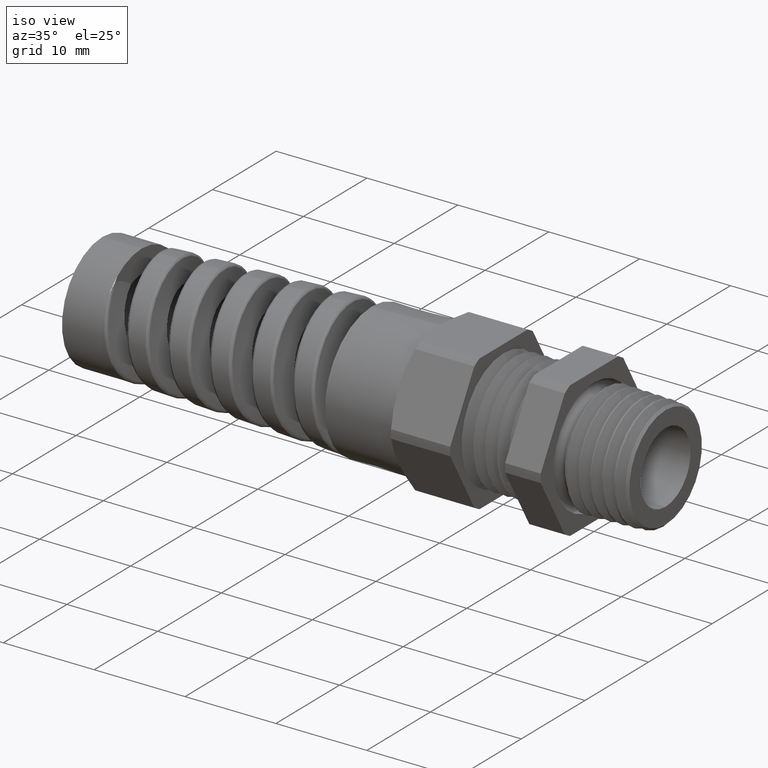
[diagram: clean part render]
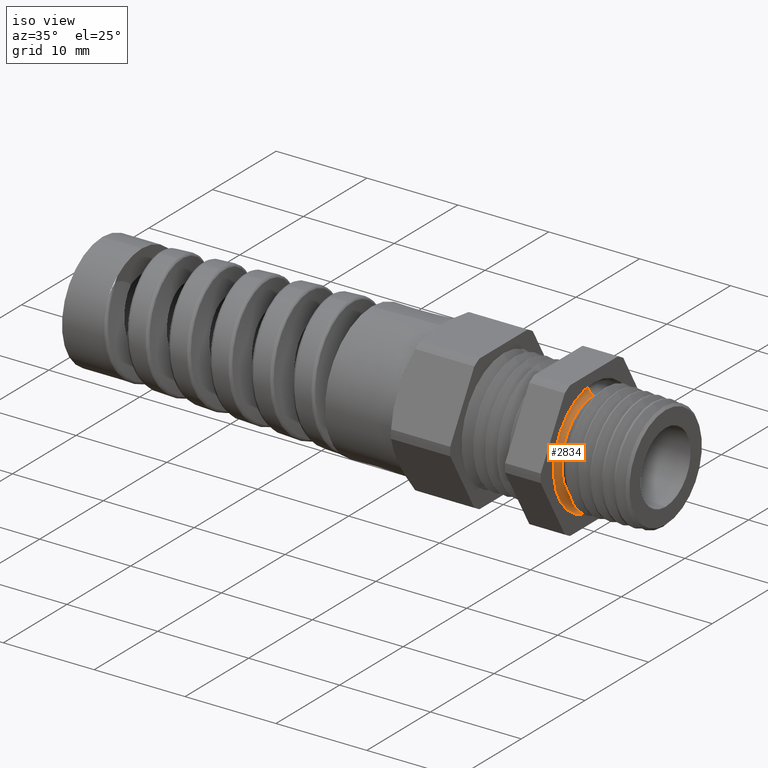
[diagram: same view with one face highlighted and labeled with its STEP entity id]
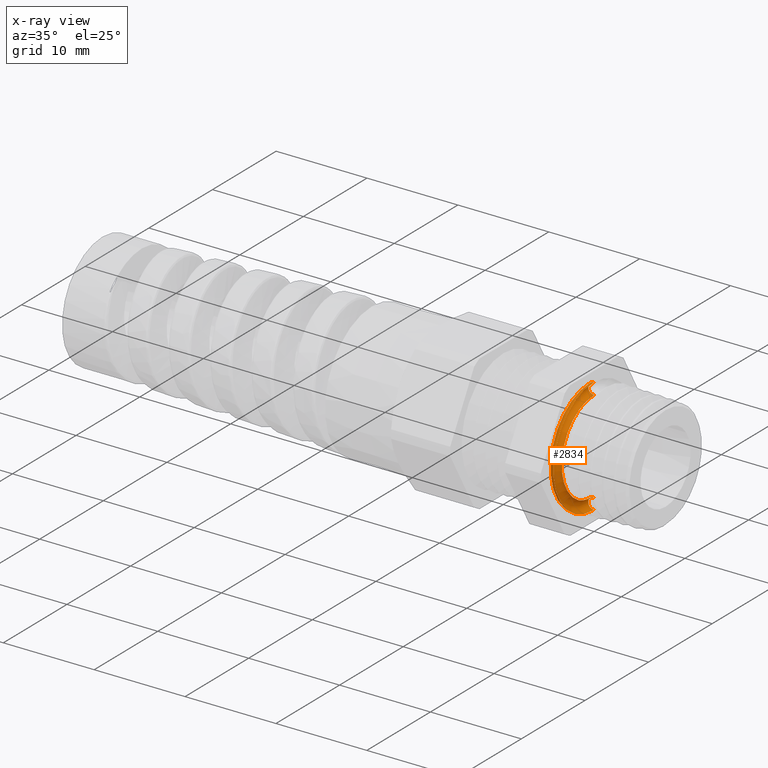
[diagram: x-ray of the same camera — body ghosted, the highlighted face saturated]
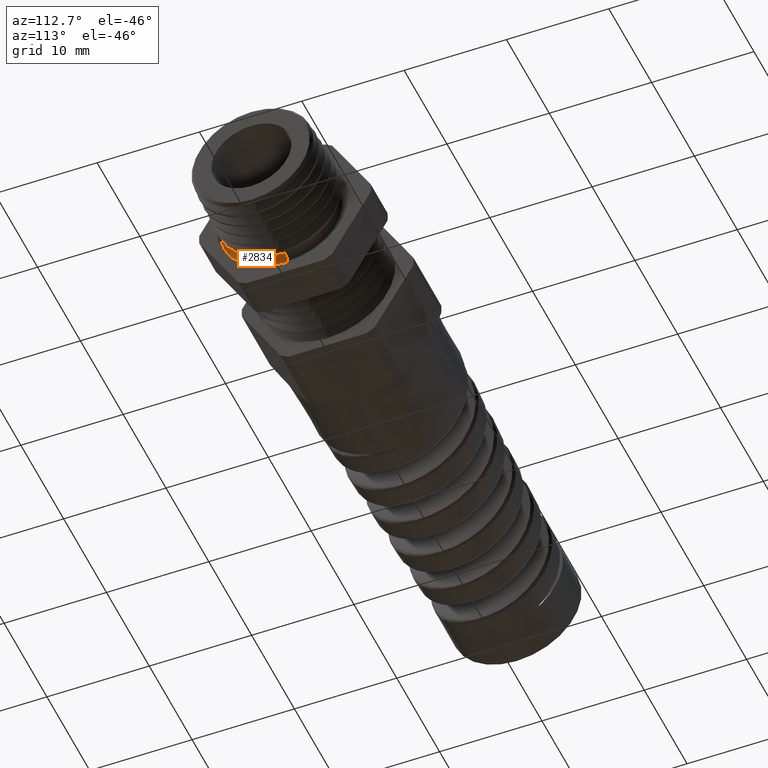
[diagram: same view with one face highlighted and labeled with its STEP entity id]
A machine part, iso view. The second image highlights one B-rep face of the part: STEP entity #2834.
The next image is the same camera in x-ray: the body ghosted, the highlighted face saturated — about 0% of this face is hidden behind the body in this view.
A second angle (auxiliary view) of the same face is appended — the face is thin or edge-on in the first view.
In plain terms, the highlighted toroidal blend (fillet) surface has major radius 5.715 mm and minor (blend) radius 0.635 mm.
Its self-contained STEP definition (entity closure, byte-faithful):
#1174 = EDGE_CURVE ( 'NONE', #1199, #1206, #3993, .T. ) ;
#1199 = VERTEX_POINT ( 'NONE', #4009 ) ;
#1206 = VERTEX_POINT ( 'NONE', #3997 ) ;
#2746 = ORIENTED_EDGE ( 'NONE', *, *, #2775, .T. ) ;
#2764 = EDGE_LOOP ( 'NONE', ( #2773, #2746, #2836, #2766 ) ) ;
#2765 = VERTEX_POINT ( 'NONE', #9650 ) ;
#2766 = ORIENTED_EDGE ( 'NONE', *, *, #2832, .F. ) ;
#2773 = ORIENTED_EDGE ( 'NONE', *, *, #1174, .F. ) ;
#2775 = EDGE_CURVE ( 'NONE', #1199, #2835, #9694, .T. ) ;
#2832 = EDGE_CURVE ( 'NONE', #1206, #2765, #9790, .T. ) ;
#2834 = ADVANCED_FACE ( 'NONE', ( #9782 ), #9781, .F. ) ;
#2835 = VERTEX_POINT ( 'NONE', #9776 ) ;
#2836 = ORIENTED_EDGE ( 'NONE', *, *, #2842, .T. ) ;
#2842 = EDGE_CURVE ( 'NONE', #2835, #2765, #9772, .T. ) ;
#3989 = DIRECTION ( 'NONE',  ( 0.0000000000000000000, 0.0000000000000000000, -1.000000000000000000 ) ) ;
#3990 = DIRECTION ( 'NONE',  ( 1.000000000000000000, 0.0000000000000000000, 0.0000000000000000000 ) ) ;
#3991 = CARTESIAN_POINT ( 'NONE',  ( -3.061616997868362800E-018, 0.0000000000000000000, 0.0000000000000000000 ) ) ;
#3992 = AXIS2_PLACEMENT_3D ( 'NONE', #3991, #3990, #3989 ) ;
#3993 = CIRCLE ( 'NONE', #3992, 0.2000000000000001500 ) ;
#3997 = CARTESIAN_POINT ( 'NONE',  ( -3.061616997868362800E-018, 0.0000000000000000000, -0.2000000000000001500 ) ) ;
#4009 = CARTESIAN_POINT ( 'NONE',  ( -3.061616997868362800E-018, 2.449293598294708400E-017, 0.2000000000000001500 ) ) ;
#9650 = CARTESIAN_POINT ( 'NONE',  ( 1.707404996040164500E-017, 0.0000000000000000000, -0.2499999999999998300 ) ) ;
#9690 = DIRECTION ( 'NONE',  ( 0.0000000000000000000, 1.224646799147352500E-016, 1.000000000000000000 ) ) ;
#9691 = DIRECTION ( 'NONE',  ( 0.0000000000000000000, 1.000000000000000000, -1.224646799147353200E-016 ) ) ;
#9692 = CARTESIAN_POINT ( 'NONE',  ( 0.0000000000000000000, 2.755455298081544500E-017, 0.2249999999999999800 ) ) ;
#9693 = AXIS2_PLACEMENT_3D ( 'NONE', #9692, #9691, #9690 ) ;
#9694 = CIRCLE ( 'NONE', #9693, 0.02499999999999983500 ) ;
#9768 = DIRECTION ( 'NONE',  ( 0.0000000000000000000, 0.0000000000000000000, 1.000000000000000000 ) ) ;
#9769 = DIRECTION ( 'NONE',  ( 1.000000000000000000, 0.0000000000000000000, 0.0000000000000000000 ) ) ;
#9770 = CARTESIAN_POINT ( 'NONE',  ( 1.707404996040164500E-017, 0.0000000000000000000, 0.0000000000000000000 ) ) ;
#9771 = AXIS2_PLACEMENT_3D ( 'NONE', #9770, #9769, #9768 ) ;
#9772 = CIRCLE ( 'NONE', #9771, 0.2499999999999998300 ) ;
#9776 = CARTESIAN_POINT ( 'NONE',  ( 1.707404996040164500E-017, 3.061616997868380600E-017, 0.2499999999999998300 ) ) ;
#9777 = DIRECTION ( 'NONE',  ( 0.0000000000000000000, 0.0000000000000000000, -1.000000000000000000 ) ) ;
#9778 = DIRECTION ( 'NONE',  ( 1.000000000000000000, 0.0000000000000000000, 0.0000000000000000000 ) ) ;
#9779 = CARTESIAN_POINT ( 'NONE',  ( 0.0000000000000000000, 0.0000000000000000000, 0.0000000000000000000 ) ) ;
#9780 = AXIS2_PLACEMENT_3D ( 'NONE', #9779, #9778, #9777 ) ;
#9781 = TOROIDAL_SURFACE ( 'NONE', #9780, 0.2249999999999999800, 0.02499999999999983500 ) ;
#9782 = FACE_OUTER_BOUND ( 'NONE', #2764, .T. ) ;
#9783 = DIRECTION ( 'NONE',  ( 0.0000000000000000000, 0.0000000000000000000, -1.000000000000000000 ) ) ;
#9784 = DIRECTION ( 'NONE',  ( 0.0000000000000000000, -1.000000000000000000, 0.0000000000000000000 ) ) ;
#9785 = CARTESIAN_POINT ( 'NONE',  ( 0.0000000000000000000, 0.0000000000000000000, -0.2249999999999999800 ) ) ;
#9786 = AXIS2_PLACEMENT_3D ( 'NONE', #9785, #9784, #9783 ) ;
#9790 = CIRCLE ( 'NONE', #9786, 0.02499999999999983500 ) ;